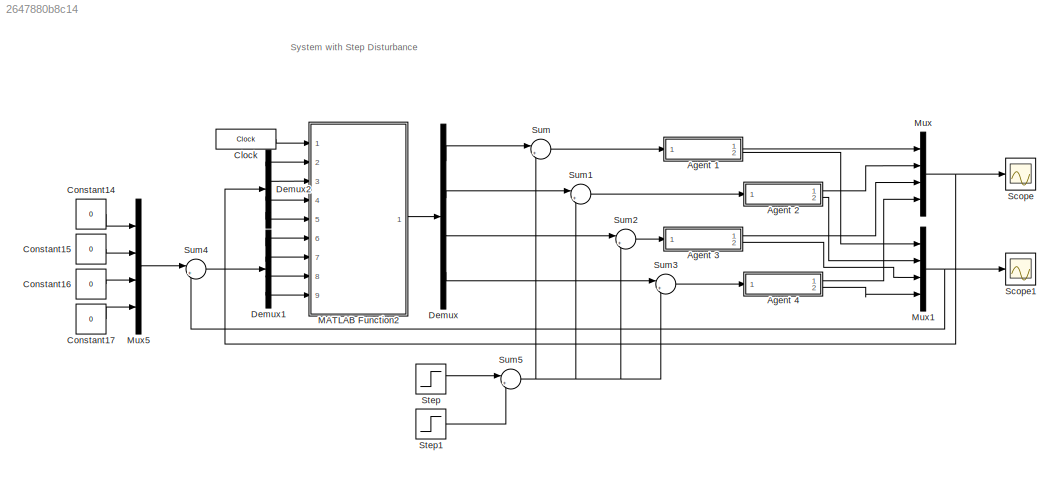
MODEL slx_2647880b8c14
KIND model
CONFIG AbsTol = auto
CONFIG EnableMultiTasking = off
CONFIG FixedStep = auto
CONFIG MaxStep = auto
CONFIG MinStep = auto
CONFIG RelTol = 1e-3
CONFIG SampleTimeConstraint = Unconstrained
CONFIG SolverName = VariableStepAuto
CONFIG StartTime = 0.0
CONFIG StopTime = 25
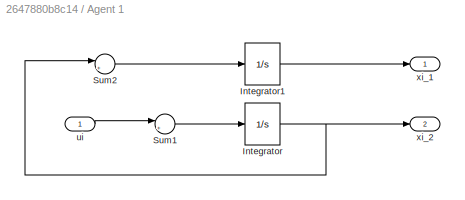
BLOCK [SubSystem] Agent 1
  Ports = [1, 2]
  RequestExecContextInheritance = off
BLOCK [Integrator] Agent 1/Integrator
  InitialCondition = -0.2
  Ports = [1, 1]
BLOCK [Integrator] Agent 1/Integrator1
  InitialCondition = 5
  Ports = [1, 1]
BLOCK [Sum] Agent 1/Sum1
  Inputs = |+-
  Ports = [2, 1]
BLOCK [Sum] Agent 1/Sum2
  Inputs = |++
  Ports = [2, 1]
BLOCK [Inport] Agent 1/ui
BLOCK [Outport] Agent 1/xi_1
BLOCK [Outport] Agent 1/xi_2
  Port = 2
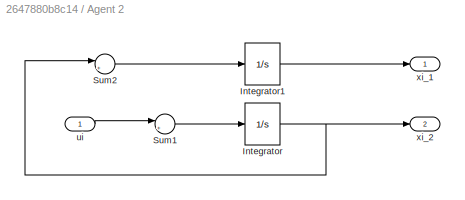
BLOCK [SubSystem] Agent 2
  Ports = [1, 2]
  RequestExecContextInheritance = off
BLOCK [Integrator] Agent 2/Integrator
  InitialCondition = 0.1
  Ports = [1, 1]
BLOCK [Integrator] Agent 2/Integrator1
  InitialCondition = 2
  Ports = [1, 1]
BLOCK [Sum] Agent 2/Sum1
  Inputs = |+-
  Ports = [2, 1]
BLOCK [Sum] Agent 2/Sum2
  Inputs = |++
  Ports = [2, 1]
BLOCK [Inport] Agent 2/ui
BLOCK [Outport] Agent 2/xi_1
BLOCK [Outport] Agent 2/xi_2
  Port = 2
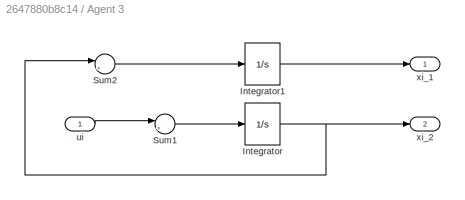
BLOCK [SubSystem] Agent 3
  Ports = [1, 2]
  RequestExecContextInheritance = off
BLOCK [Integrator] Agent 3/Integrator
  InitialCondition = 0.1
  Ports = [1, 1]
BLOCK [Integrator] Agent 3/Integrator1
  InitialCondition = 2
  Ports = [1, 1]
BLOCK [Sum] Agent 3/Sum1
  Inputs = |+-
  Ports = [2, 1]
BLOCK [Sum] Agent 3/Sum2
  Inputs = |++
  Ports = [2, 1]
BLOCK [Inport] Agent 3/ui
BLOCK [Outport] Agent 3/xi_1
BLOCK [Outport] Agent 3/xi_2
  Port = 2
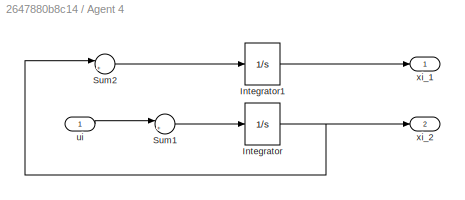
BLOCK [SubSystem] Agent 4
  Ports = [1, 2]
  RequestExecContextInheritance = off
BLOCK [Integrator] Agent 4/Integrator
  InitialCondition = 2
  Ports = [1, 1]
BLOCK [Integrator] Agent 4/Integrator1
  Ports = [1, 1]
BLOCK [Sum] Agent 4/Sum1
  Inputs = |+-
  Ports = [2, 1]
BLOCK [Sum] Agent 4/Sum2
  Inputs = |++
  Ports = [2, 1]
BLOCK [Inport] Agent 4/ui
BLOCK [Outport] Agent 4/xi_1
BLOCK [Outport] Agent 4/xi_2
  Port = 2
BLOCK [Clock] Clock
  DisplayTime = on
BLOCK [Constant] Constant14
  Value = 0
BLOCK [Constant] Constant15
  Value = 0
BLOCK [Constant] Constant16
  Value = 0
BLOCK [Constant] Constant17
  Value = 0
BLOCK [Demux] Demux
  Ports = [1, 4]
BLOCK [Demux] Demux1
  Ports = [1, 4]
BLOCK [Demux] Demux2
  Ports = [1, 4]
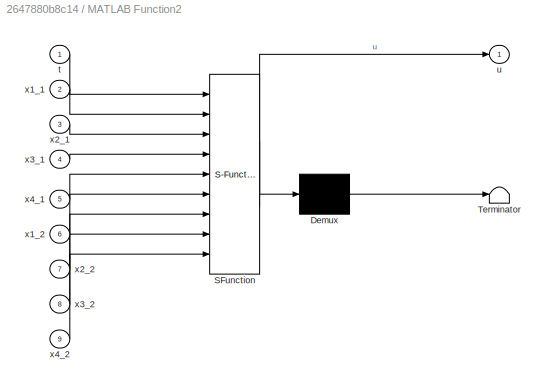
BLOCK [SubSystem] MATLAB Function2
  ErrorFcn = Stateflow.Translate.translate
  PermitHierarchicalResolution = ExplicitOnly
  Ports = [9, 1]
  RequestExecContextInheritance = off
  SFBlockType = MATLAB Function
  TreatAsAtomicUnit = on
BLOCK [Demux] MATLAB Function2/ Demux 
  Outputs = 1
  Ports = [1, 1]
BLOCK [S-Function] MATLAB Function2/ SFunction 
  EnableBusSupport = on
  FunctionName = sf_sfun
  PortCounts = [9 2]
  Ports = [9, 2]
  SFcnIsStateOwnerBlock = off
  SFunctionDeploymentMode = off
  Tag = Stateflow S-Function 3
BLOCK [Terminator] MATLAB Function2/ Terminator 
BLOCK [Inport] MATLAB Function2/t
BLOCK [Outport] MATLAB Function2/u
BLOCK [Inport] MATLAB Function2/x1_1
  Port = 2
BLOCK [Inport] MATLAB Function2/x1_2
  Port = 6
BLOCK [Inport] MATLAB Function2/x2_1
  Port = 3
BLOCK [Inport] MATLAB Function2/x2_2
  Port = 7
BLOCK [Inport] MATLAB Function2/x3_1
  Port = 4
BLOCK [Inport] MATLAB Function2/x3_2
  Port = 8
BLOCK [Inport] MATLAB Function2/x4_1
  Port = 5
BLOCK [Inport] MATLAB Function2/x4_2
  Port = 9
BLOCK [Mux] Mux
  DisplayOption = bar
  Ports = [4, 1]
BLOCK [Mux] Mux1
  DisplayOption = bar
  Ports = [4, 1]
BLOCK [Mux] Mux5
  DisplayOption = bar
  Ports = [4, 1]
BLOCK [Scope] Scope
  Floating = off
  NumInputPorts = 1
  Ports = [1]
  ScopeSpecificationString = Simulink.scopes.TimeScopeBlockCfg('CurrentConfiguration', extmgr.ConfigurationSet(extmgr.Configuration('Core','General UI',true),extmgr.Configuration('Core','Source UI',true),extmgr.Configuration('Sources','WiredSimulink',true),extmgr.Configuration('Visuals','Time Domain',true,'SerializedDisplays',{struct('MinYLimReal','-1.30727','MaxYLimReal','34.98383','YLabelReal','','MinYLimMag','0.00000','Max...<+1440ch>
BLOCK [Scope] Scope1
  Floating = off
  NumInputPorts = 1
  Ports = [1]
  ScopeSpecificationString = Simulink.scopes.TimeScopeBlockCfg('CurrentConfiguration', extmgr.ConfigurationSet(extmgr.Configuration('Core','General UI',true),extmgr.Configuration('Core','Source UI',true),extmgr.Configuration('Sources','WiredSimulink',true,'DataLoggingVariableName','ScopeData1'),extmgr.Configuration('Visuals','Time Domain',true,'SerializedDisplays',{struct('MinYLimReal','-0.28779','MaxYLimReal','0.4617','YLabe...<+1446ch>
BLOCK [Step] Step
  After = 0.4
  SampleTime = 0
  Time = 5
BLOCK [Step] Step1
  After = 0.4
  SampleTime = 0
  Time = 8
BLOCK [Sum] Sum
  Inputs = |++
  Ports = [2, 1]
BLOCK [Sum] Sum1
  Inputs = |++
  Ports = [2, 1]
BLOCK [Sum] Sum2
  Inputs = |++
  Ports = [2, 1]
BLOCK [Sum] Sum3
  Inputs = |++
  Ports = [2, 1]
BLOCK [Sum] Sum4
  Inputs = |++
  Ports = [2, 1]
BLOCK [Sum] Sum5
  Inputs = |+-
  Ports = [2, 1]
ANNOTATION (root): System with Step Disturbance
LINE Agent 1/Integrator1:1 -> Agent 1/xi_1:1
NET Agent 1/Integrator:1 -> Agent 1/Sum2:1, Agent 1/xi_2:1
LINE Agent 1/Sum1:1 -> Agent 1/Integrator:1
LINE Agent 1/Sum2:1 -> Agent 1/Integrator1:1
LINE Agent 1/ui:1 -> Agent 1/Sum1:1
LINE Agent 1:1 -> Mux:1
LINE Agent 1:2 -> Mux1:1
LINE Agent 2/Integrator1:1 -> Agent 2/xi_1:1
NET Agent 2/Integrator:1 -> Agent 2/Sum2:1, Agent 2/xi_2:1
LINE Agent 2/Sum1:1 -> Agent 2/Integrator:1
LINE Agent 2/Sum2:1 -> Agent 2/Integrator1:1
LINE Agent 2/ui:1 -> Agent 2/Sum1:1
LINE Agent 2:1 -> Mux:2
LINE Agent 2:2 -> Mux1:2
LINE Agent 3/Integrator1:1 -> Agent 3/xi_1:1
NET Agent 3/Integrator:1 -> Agent 3/Sum2:1, Agent 3/xi_2:1
LINE Agent 3/Sum1:1 -> Agent 3/Integrator:1
LINE Agent 3/Sum2:1 -> Agent 3/Integrator1:1
LINE Agent 3/ui:1 -> Agent 3/Sum1:1
LINE Agent 3:1 -> Mux:3
LINE Agent 3:2 -> Mux1:3
LINE Agent 4/Integrator1:1 -> Agent 4/xi_1:1
NET Agent 4/Integrator:1 -> Agent 4/Sum2:1, Agent 4/xi_2:1
LINE Agent 4/Sum1:1 -> Agent 4/Integrator:1
LINE Agent 4/Sum2:1 -> Agent 4/Integrator1:1
LINE Agent 4/ui:1 -> Agent 4/Sum1:1
LINE Agent 4:1 -> Mux:4
LINE Agent 4:2 -> Mux1:4
LINE Clock:1 -> MATLAB Function2:1
LINE Constant14:1 -> Mux5:1
LINE Constant15:1 -> Mux5:2
LINE Constant16:1 -> Mux5:3
LINE Constant17:1 -> Mux5:4
LINE Demux1:1 -> MATLAB Function2:6
LINE Demux1:2 -> MATLAB Function2:7
LINE Demux1:3 -> MATLAB Function2:8
LINE Demux1:4 -> MATLAB Function2:9
LINE Demux2:1 -> MATLAB Function2:2
LINE Demux2:2 -> MATLAB Function2:3
LINE Demux2:3 -> MATLAB Function2:4
LINE Demux2:4 -> MATLAB Function2:5
LINE Demux:1 -> Sum:1
LINE Demux:2 -> Sum1:1
LINE Demux:3 -> Sum2:1
LINE Demux:4 -> Sum3:1
LINE MATLAB Function2:1 -> Demux:1
NET Mux1:1 -> Scope1:1, Sum4:2
LINE Mux5:1 -> Sum4:1
NET Mux:1 -> Demux2:1, Scope:1
LINE Step1:1 -> Sum5:2
LINE Step:1 -> Sum5:1
LINE Sum1:1 -> Agent 2:1
LINE Sum2:1 -> Agent 3:1
LINE Sum3:1 -> Agent 4:1
LINE Sum4:1 -> Demux1:1
NET Sum5:1 -> Sum1:2, Sum2:2, Sum3:2, Sum:2
LINE Sum:1 -> Agent 1:1
note: NET lines group one-source signal fan-out (src -> all destinations, sorted); 1:1 wires keep LINE
CHART MATLAB Function2 states=1 transitions=1
  STATE_LABEL 'eML_blk_kernel()'
  STATE_LABEL "SCRIPT:\nfunction u = func(t, x1_1, x2_1, x3_1, x4_1, x1_2, x2_2, x3_2, x4_2)\n\nstates_1 = [x1_1, x2_1, x3_1, x4_1]';\nstates_2 = [x1_2, x2_2, x3_2, x4_2]';\n\nL = [1.6   0  -0.9  -0.7;\n     0     1  -1     0;\n    -0.9  -1   1.9   0;\n    -0.7   0   0     0.7;\n    ];\n\nn = 4;\nD = 0.4;\nc1 = 2;\nc2 = 2.3;\nepsilons = [0.02;0.02;0.02;0.02];\n\neigL = round(eig(L)*10000)/10000;\n\nlambdaMax = max(eigL);\n\neigs = so...<+241ch>"
CHART  states=0 transitions=0
